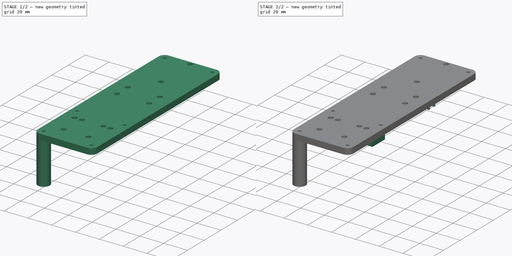
[diagram: build sequence overview — one tinted view per stage of 2, left to right]
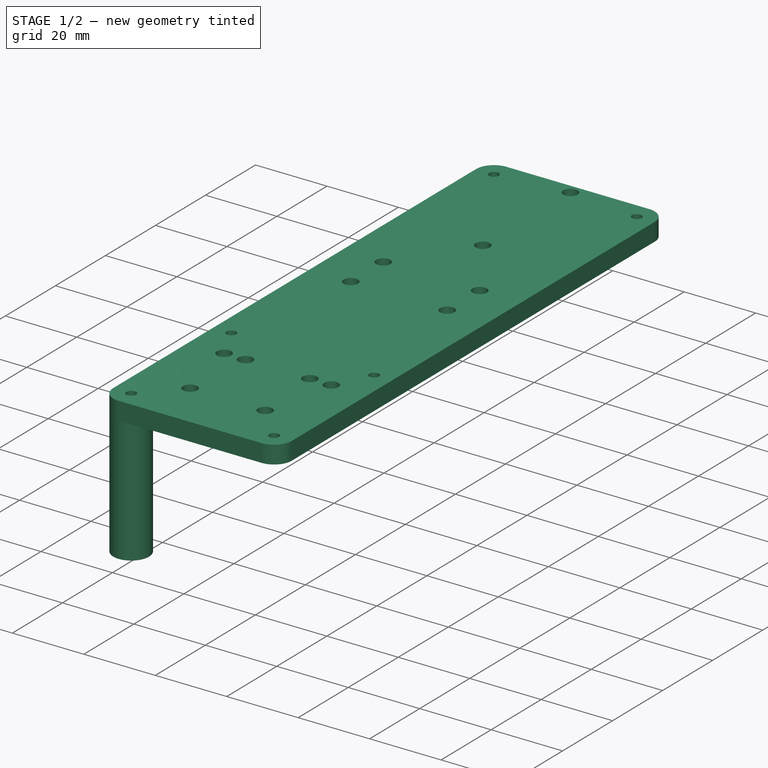
[diagram: stage 1 of 2 — iso view after this stage's code; geometry added in this stage tinted green]
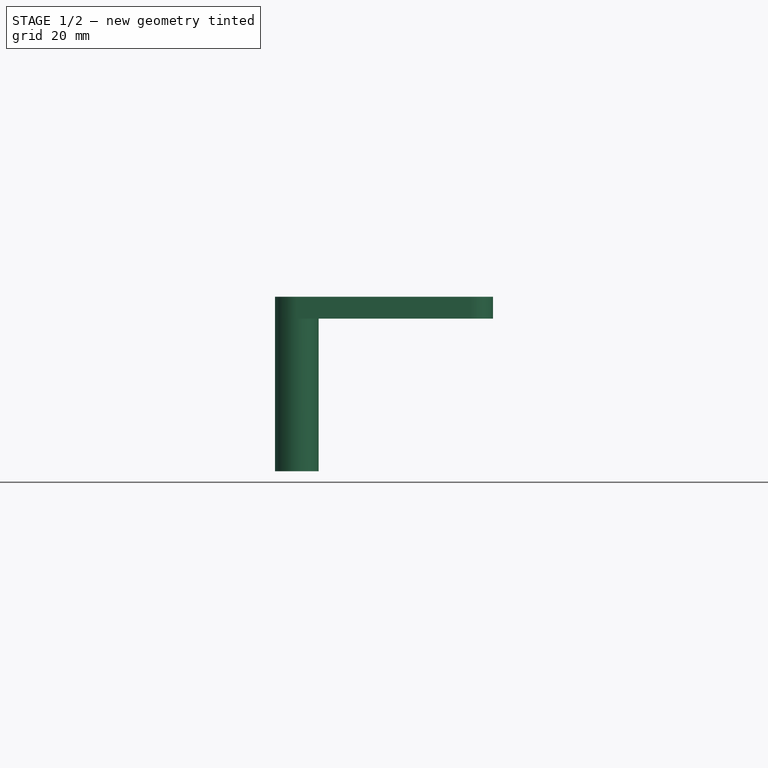
[diagram: stage 1 of 2 — front view after this stage's code; geometry added in this stage tinted green]
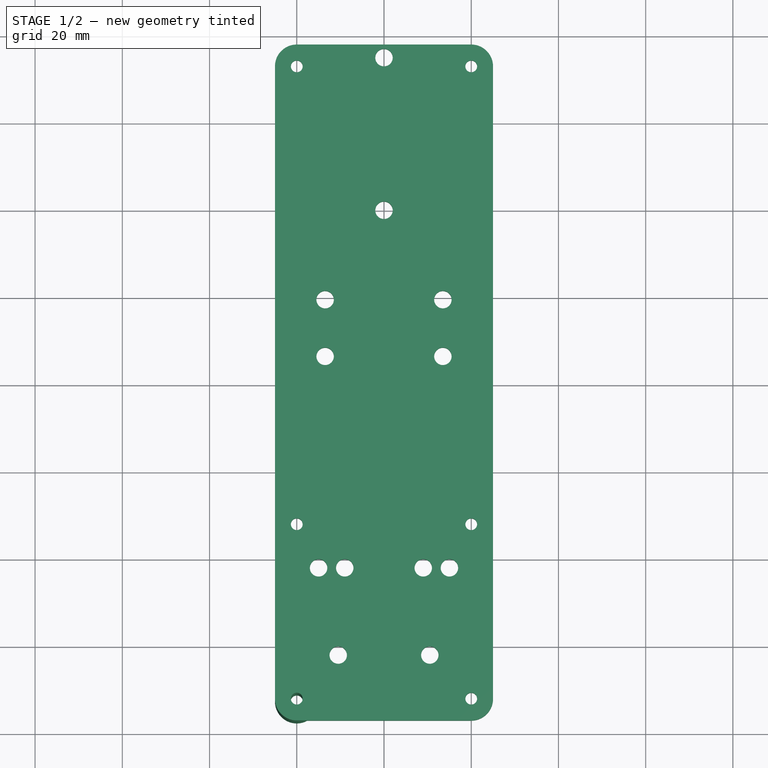
[diagram: stage 1 of 2 — top view after this stage's code; geometry added in this stage tinted green]
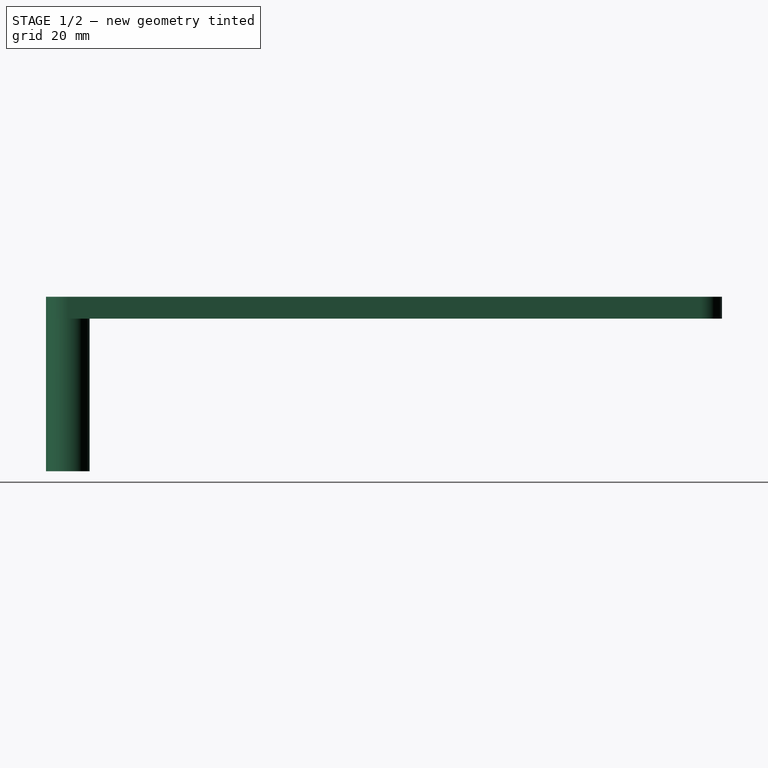
[diagram: stage 1 of 2 — right view after this stage's code; geometry added in this stage tinted green]
FCSTD DOCUMENT  (FreeCAD 0.21R33694 (Git))
Label: royer-baseplate
License: All rights reserved
LicenseURL: https://en.wikipedia.org/wiki/All_rights_reserved
objects: Sketcher::SketchObject×5, PartDesign::Pad×4, PartDesign::Body×2
note: 15 computed .brp shape members not serialized (recipe doc carries the construction recipe); baked Part::Feature solids carry a one-line shape summary decoded from their .brp

FEATURE [Sketcher::SketchObject] Sketch  label="base"
  FullyConstrained = true
  MapMode = 5
  Support = -> [XY_Plane]
  sketch-geometry (31):
    g0: LineSegment StartX=-25 StartY=72.5 StartZ=0 EndX=-25 EndY=-72.5 EndZ=0
    g1: LineSegment StartX=-20 StartY=-77.5 StartZ=0 EndX=20 EndY=-77.5 EndZ=0
    g2: LineSegment StartX=25 StartY=-72.5 StartZ=0 EndX=25 EndY=72.5 EndZ=0
    g3: LineSegment StartX=20 StartY=77.5 StartZ=0 EndX=-20 EndY=77.5 EndZ=0
    g4: GeomPoint X=0 Y=0 Z=0
    g5: Circle CenterX=-10.5 CenterY=-62.5 CenterZ=0 NormalX=0 NormalY=0 NormalZ=1 AngleXU=0 Radius=2
    g6: Circle CenterX=10.5 CenterY=-62.5 CenterZ=0 NormalX=0 NormalY=0 NormalZ=1 AngleXU=0 Radius=2
    g7: Circle CenterX=-13.5 CenterY=19 CenterZ=0 NormalX=0 NormalY=0 NormalZ=1 AngleXU=0 Radius=2
    g8: Circle CenterX=-13.5 CenterY=6 CenterZ=0 NormalX=0 NormalY=0 NormalZ=1 AngleXU=0 Radius=2
    g9: Circle CenterX=13.5 CenterY=19 CenterZ=0 NormalX=0 NormalY=0 NormalZ=1 AngleXU=0 Radius=2
    g10: Circle CenterX=13.5 CenterY=6 CenterZ=0 NormalX=0 NormalY=0 NormalZ=1 AngleXU=0 Radius=2
    g11: LineSegment StartX=-25 StartY=12.5 StartZ=0 EndX=25 EndY=12.5 EndZ=0
    g12: Circle CenterX=0 CenterY=74.5 CenterZ=0 NormalX=0 NormalY=0 NormalZ=1 AngleXU=0 Radius=2
    g13: Circle CenterX=0 CenterY=39.5 CenterZ=0 NormalX=0 NormalY=0 NormalZ=1 AngleXU=0 Radius=2
    g14: Circle CenterX=-20 CenterY=-72.5 CenterZ=0 NormalX=0 NormalY=0 NormalZ=1 AngleXU=0 Radius=1.35
    g15: Circle CenterX=20 CenterY=-72.5 CenterZ=0 NormalX=0 NormalY=0 NormalZ=1 AngleXU=0 Radius=1.35
    g16: Circle CenterX=-20 CenterY=72.5 CenterZ=0 NormalX=0 NormalY=0 NormalZ=1 AngleXU=0 Radius=1.35
    g17: Circle CenterX=20 CenterY=72.5 CenterZ=0 NormalX=0 NormalY=0 NormalZ=1 AngleXU=0 Radius=1.35
    g18: ArcOfCircle CenterX=-20 CenterY=-72.5 CenterZ=0 NormalX=0 NormalY=0 NormalZ=1 AngleXU=0 Radius=5 StartAngle=3.14159 EndAngle=4.71239
    g19: ArcOfCircle CenterX=20 CenterY=-72.5 CenterZ=0 NormalX=0 NormalY=0 NormalZ=1 AngleXU=0 Radius=5 StartAngle=4.71239 EndAngle=6.28319
    g20: ArcOfCircle CenterX=-20 CenterY=72.5 CenterZ=0 NormalX=0 NormalY=0 NormalZ=1 AngleXU=0 Radius=5 StartAngle=1.5708 EndAngle=3.14159
    g21: ArcOfCircle CenterX=20 CenterY=72.5 CenterZ=0 NormalX=0 NormalY=0 NormalZ=1 AngleXU=0 Radius=5 StartAngle=-9e-16 EndAngle=1.5708
    g22: LineSegment StartX=-25 StartY=-17.5 StartZ=0 EndX=25 EndY=-17.5 EndZ=0
    g23: LineSegment StartX=-25 StartY=-47.5 StartZ=0 EndX=25 EndY=-47.5 EndZ=0
    g24: Circle CenterX=-15 CenterY=-42.5 CenterZ=0 NormalX=0 NormalY=0 NormalZ=1 AngleXU=0 Radius=2
    g25: Circle CenterX=15 CenterY=-42.5 CenterZ=0 NormalX=0 NormalY=0 NormalZ=1 AngleXU=0 Radius=2
    g26: Circle CenterX=-20 CenterY=-32.5 CenterZ=0 NormalX=0 NormalY=0 NormalZ=1 AngleXU=0 Radius=1.35
    g27: Circle CenterX=20 CenterY=-32.5 CenterZ=0 NormalX=0 NormalY=0 NormalZ=1 AngleXU=0 Radius=1.35
    g28: Circle CenterX=-9 CenterY=-42.5 CenterZ=0 NormalX=0 NormalY=0 NormalZ=1 AngleXU=0 Radius=2
    g29: Circle CenterX=9 CenterY=-42.5 CenterZ=0 NormalX=0 NormalY=0 NormalZ=1 AngleXU=0 Radius=2
    g30: LineSegment StartX=-15 StartY=-42.5 StartZ=0 EndX=15 EndY=-42.5 EndZ=0
  constraints (77):
    c: Horizontal(g1)
    c: Horizontal(g3)
    c: Vertical(g0)
    c: Vertical(g2)
    c: Coincident(g4,g-1)
    c: Diameter(g6) = 4
    c: Diameter(g5) = 4
    c: Symmetric(g5,g6,g-2)
    c: Distance(g5,g-2) = 10.5
    c: Diameter(g7) = 4
    c: Diameter(g8) = 4
    c: Diameter(g9) = 4
    c: Diameter(g10) = 4
    c: PointOnObject(g11,g0)
    c: PointOnObject(g11,g2)
    c: Horizontal(g11)
    c: Symmetric(g7,g9,g-2)
    c: Symmetric(g8,g10,g-2)
    c: Symmetric(g8,g7,g11)
    c: Distance(g8,g7) = 13
    c: Distance(g7,g9) = 27
    c: Diameter(g12) = 4
    c: Diameter(g13) = 4
    c: Distance(g13,g12) = 35
    c: Distance(g12,g3) = 3
    c: Diameter(g16) = 2.7
    c: Diameter(g17) = 2.7
    c: Diameter(g14) = 2.7
    c: Diameter(g15) = 2.7
    c: Symmetric(g14,g15,g-2)
    c: Symmetric(g16,g17,g-2)
    c: Symmetric(g16,g14,g-1)
    c: Coincident(g18,g14)
    c: Tangent(g18,g1) = -1.5708
    c: Diameter(g18) = 10
    c: Tangent(g18,g0) = -1.5708
    c: Coincident(g19,g15)
    c: Tangent(g2,g19) = -1.5708
    c: Tangent(g1,g19) = -1.5708
    c: Distance(g16,g3) = 5
    c: Tangent(g20,g3) = -1.5708
    c: Tangent(g20,g0) = -1.5708
    c: Diameter(g20) = 10
    c: Tangent(g2,g21) = -1.5708
    c: Tangent(g3,g21) = -1.5708
    c: Diameter(g21) = 10
    c: Distance(g0,g2) = 50
    c: Distance(g11,g3) = 65
    c: PointOnObject(g22,g0)
    c: PointOnObject(g22,g2)
    c: Horizontal(g22)
    c: Distance(g22,g11) = 30
    c: PointOnObject(g23,g0)
    c: PointOnObject(g23,g2)
    c: Horizontal(g23)
    c: Distance(g23,g22) = 30
    c: Distance(g24,g23) = 5
    c: Distance(g24,g25) = 30
    c: Symmetric(g24,g25,g-2)
    c: Diameter(g24) = 4
    c: Distance(g5,g23) = 15
    c: Distance(g1,g23) = 30
    c: Symmetric(g26,g27,g-2)
    c: Diameter(g27) = 2.7
    c: Diameter(g26) = 2.7
    c: Distance(g14,g26) = 40
    c: DistanceX(g27,g15) = 0
    c: PointOnObject(g12,g-2)
    c: PointOnObject(g13,g-2)
    c: Equal(g24,g28)
    c: Equal(g24,g29)
    c: Equal(g24,g25)
    c: Coincident(g30,g24)
    c: Coincident(g30,g25)
    c: PointOnObject(g28,g30)
    c: Distance(g28,g29) = 18
    c: Symmetric(g29,g28,g-2)
FEATURE [Sketcher::SketchObject] Sketch001  label="recitifier_mount"
  FullyConstrained = true
  MapMode = 5
  Support = -> [XY_Plane]
  sketch-geometry (4):
    g0: LineSegment StartX=-5 StartY=-21 StartZ=0 EndX=5 EndY=-21 EndZ=0
    g1: LineSegment StartX=5 StartY=-21 StartZ=0 EndX=5 EndY=-6 EndZ=0
    g2: LineSegment StartX=5 StartY=-6 StartZ=0 EndX=-5 EndY=-6 EndZ=0
    g3: LineSegment StartX=-5 StartY=-6 StartZ=0 EndX=-5 EndY=-21 EndZ=0
  constraints (11):
    c: Coincident(g0,g1)
    c: Coincident(g1,g2)
    c: Coincident(g2,g3)
    c: Coincident(g3,g0)
    c: Horizontal(g0)
    c: Vertical(g1)
    c: Vertical(g3)
    c: Distance(g1) = 15
    c: Distance(g0) = 10
    c: Symmetric(g2,g1,g-2)
    c: Distance(g1,g-1) = 6
FEATURE [Sketcher::SketchObject] Sketch002  label="switch_mount"
  FullyConstrained = true
  MapMode = 5
  Support = -> [XY_Plane]
  sketch-geometry (6):
    g0: Circle CenterX=-20 CenterY=25 CenterZ=0 NormalX=0 NormalY=0 NormalZ=1 AngleXU=0 Radius=0.9
    g1: Circle CenterX=-20 CenterY=31.3 CenterZ=0 NormalX=0 NormalY=0 NormalZ=1 AngleXU=0 Radius=0.9
    g2: LineSegment StartX=-20 StartY=25 StartZ=0 EndX=-20 EndY=31.3 EndZ=0
    g3: Circle CenterX=20 CenterY=25 CenterZ=0 NormalX=0 NormalY=0 NormalZ=1 AngleXU=0 Radius=0.9
    g4: Circle CenterX=20 CenterY=31.3 CenterZ=0 NormalX=0 NormalY=0 NormalZ=1 AngleXU=0 Radius=0.9
    g5: LineSegment StartX=20 StartY=25 StartZ=0 EndX=20 EndY=31.3 EndZ=0
  constraints (15):
    c: Coincident(g2,g0)
    c: Coincident(g2,g1)
    c: Vertical(g2)
    c: Distance(g2) = 6.3
    c: Distance(g0,g-1) = 25
    c: Distance(g0,g-2) = 20
    c: Equal(g4,g3)
    c: Diameter(g4) = 1.8
    c: Equal(g1,g0)
    c: Equal(g1,g4)
    c: Coincident(g5,g3)
    c: Coincident(g5,g4)
    c: Vertical(g5)
    c: Equal(g2,g5)
    c: Symmetric(g0,g3,g-2)
FEATURE [PartDesign::Pad] Pad
  Direction = (0,0,1)
  Length = 5
  Length2 = 10
  Profile = -> Sketch
  ReferenceAxis = -> Sketch [N_Axis]
  Type = 0
FEATURE [PartDesign::Body] Body
  Group = -> [Sketch,Sketch001,Sketch002,Pad,Pad001,Pad002]
  Origin = -> Origin
  Tip = -> Pad002
FEATURE [Sketcher::SketchObject] Sketch003
  FullyConstrained = true
  MapMode = 5
  Support = -> [XY_Plane001]
  sketch-geometry (2):
    g0: Circle CenterX=-20 CenterY=-72.5 CenterZ=0 NormalX=0 NormalY=0 NormalZ=1 AngleXU=0 Radius=1.4
    g1: Circle CenterX=-20 CenterY=-72.5 CenterZ=0 NormalX=0 NormalY=0 NormalZ=1 AngleXU=0 Radius=5
  constraints (5):
    c: Distance(g0,g-2) = 20
    c: Distance(g0,g-1) = 72.5
    c: Diameter(g0) = 2.8
    c: Coincident(g1,g0)
    c: Diameter(g1) = 10
FEATURE [PartDesign::Pad] Pad003
  Direction = (0,0,1)
  Length = 35
  Length2 = 10
  Profile = -> Sketch003
  ReferenceAxis = -> Sketch003 [N_Axis]
  Reversed = true
  Type = 0
FEATURE [Sketcher::SketchObject] Sketch004
  AttachmentOffset = pos=(0,0,-20) rot=(0,0,1;0rad)
  FullyConstrained = true
  MapMode = 5
  Placement = pos=(0,0,-20) rot=(0,0,1;0rad)
  Support = -> [XY_Plane001]
  expr: Constraints[0] = Sketch003.Constraints[0]
  expr: Constraints[1] = Sketch003.Constraints[1]
  expr: Constraints[2] = Sketch003.Constraints[2]
  sketch-geometry (1):
    g0: Circle CenterX=-20 CenterY=-72.5 CenterZ=0 NormalX=0 NormalY=0 NormalZ=1 AngleXU=0 Radius=1.4
  constraints (3):
    c: Distance(g0,g-2) = 20
    c: Distance(g0,g-1) = 72.5
    c: Diameter(g0) = 2.8
FEATURE [PartDesign::Body] Body001  label="spacer"
  Group = -> [Sketch003,Pad003,Sketch004]
  Origin = -> Origin001
  Tip = -> Pad003
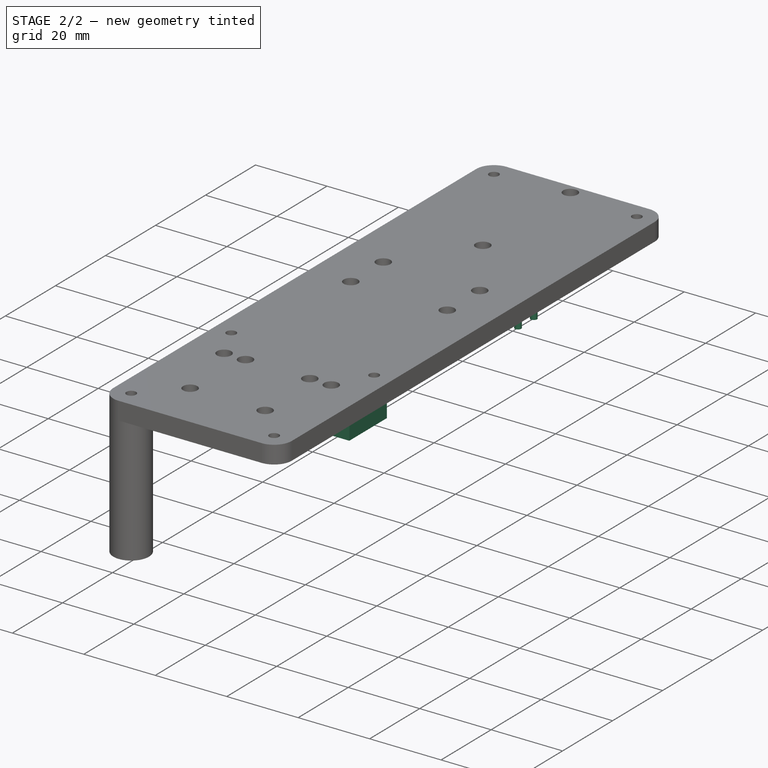
[diagram: stage 2 of 2 — iso view after this stage's code; geometry added in this stage tinted green]
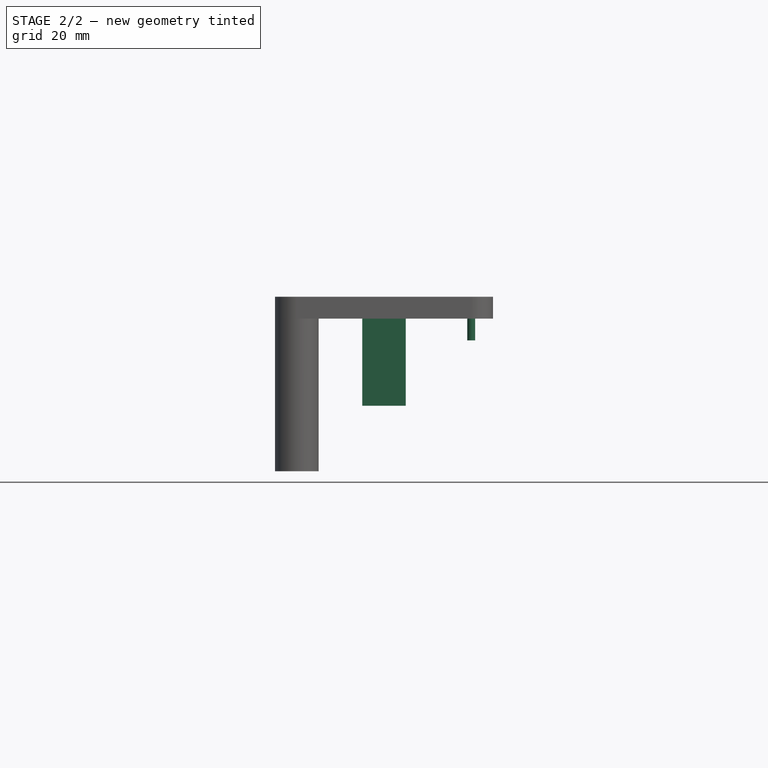
[diagram: stage 2 of 2 — front view after this stage's code; geometry added in this stage tinted green]
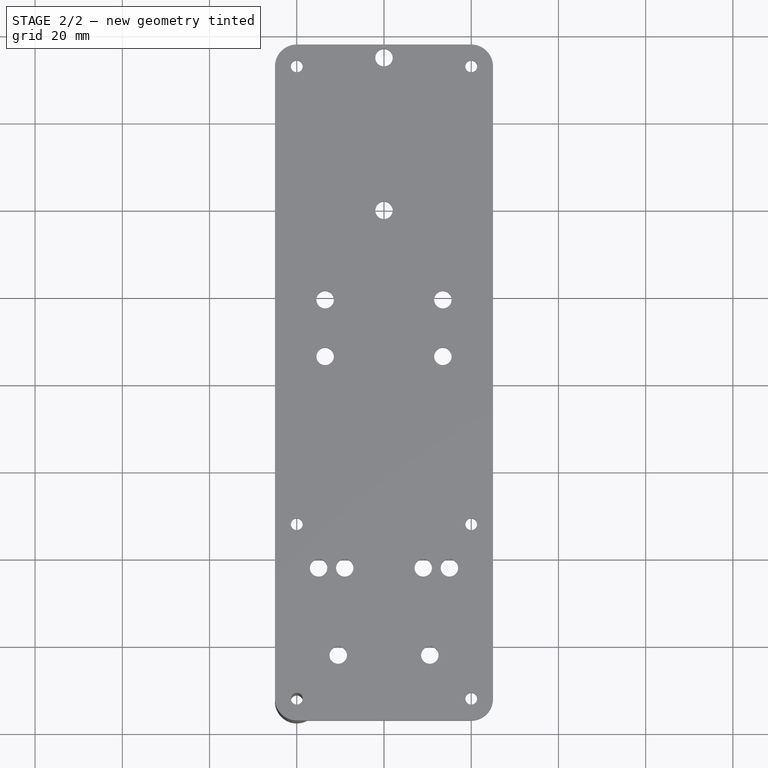
[diagram: stage 2 of 2 — top view after this stage's code; geometry added in this stage tinted green]
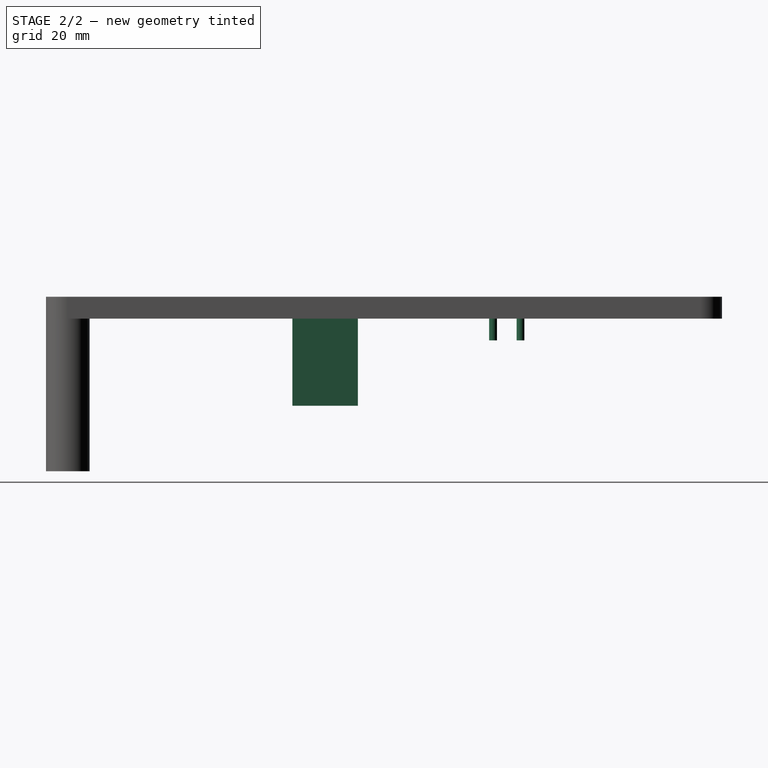
[diagram: stage 2 of 2 — right view after this stage's code; geometry added in this stage tinted green]
FEATURE [PartDesign::Pad] Pad001
  BaseFeature = -> Pad
  Direction = (0,0,1)
  Length = 20
  Length2 = 10
  Profile = -> Sketch001
  ReferenceAxis = -> Sketch001 [N_Axis]
  Reversed = true
  Type = 0
FEATURE [PartDesign::Pad] Pad002
  BaseFeature = -> Pad001
  Direction = (0,0,1)
  Length = 5
  Length2 = 10
  Profile = -> Sketch002
  ReferenceAxis = -> Sketch002 [N_Axis]
  Reversed = true
  Type = 0
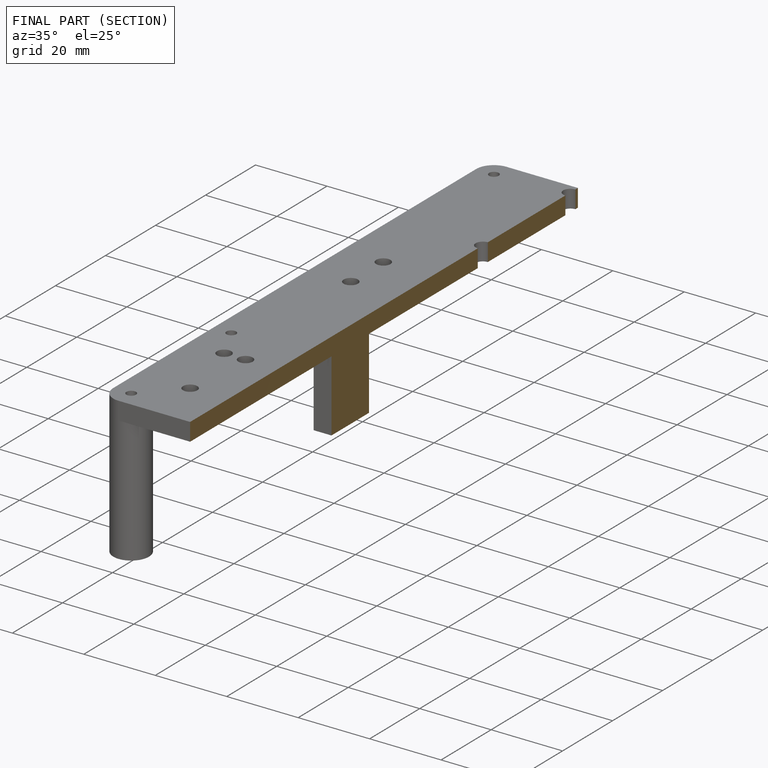
[diagram: finished part — half-section view (interior)]
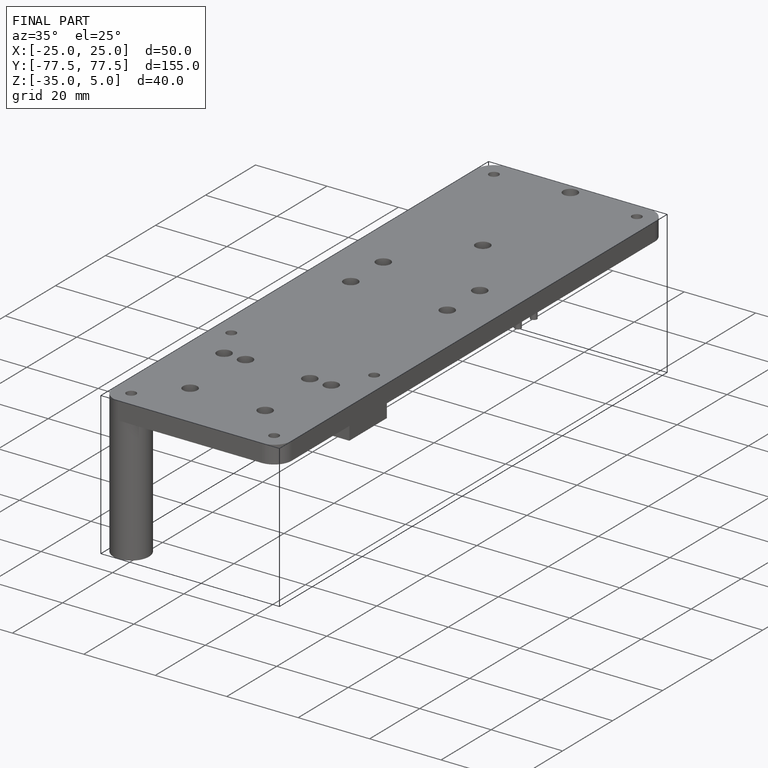
[diagram: finished part — iso view with bounding-box wireframe]
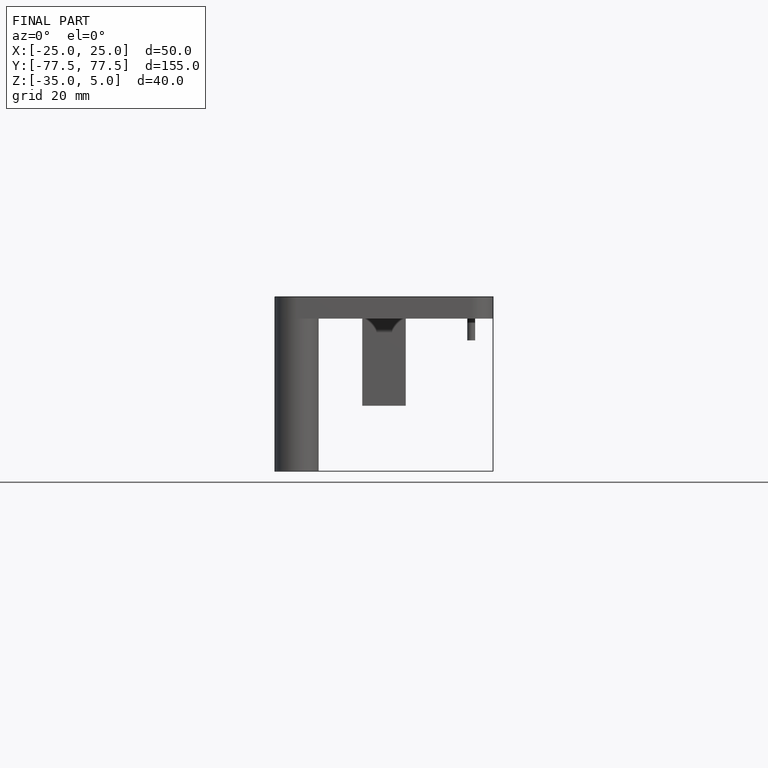
[diagram: finished part — front view with bounding-box wireframe]
